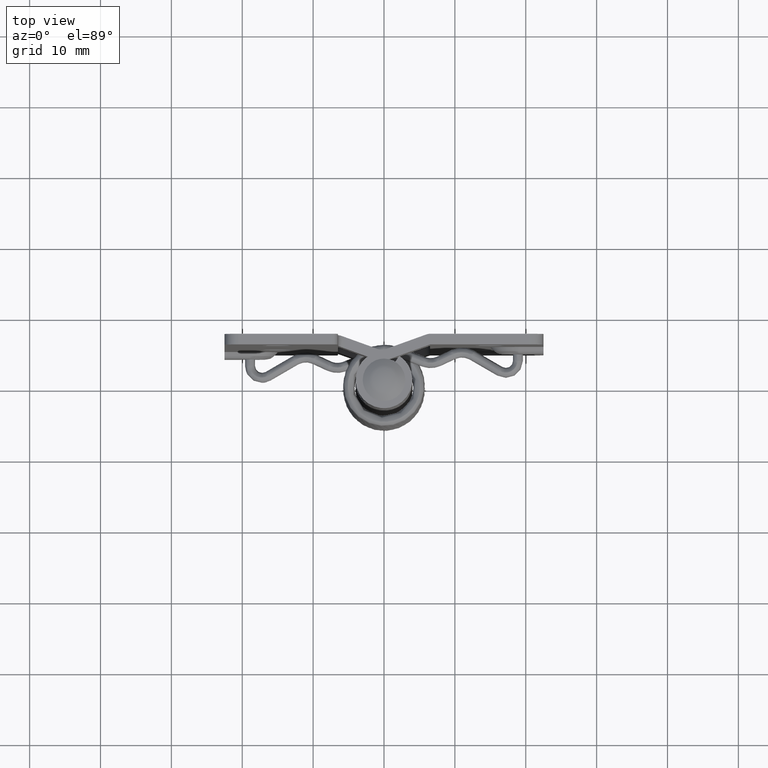
[diagram: clean part render]
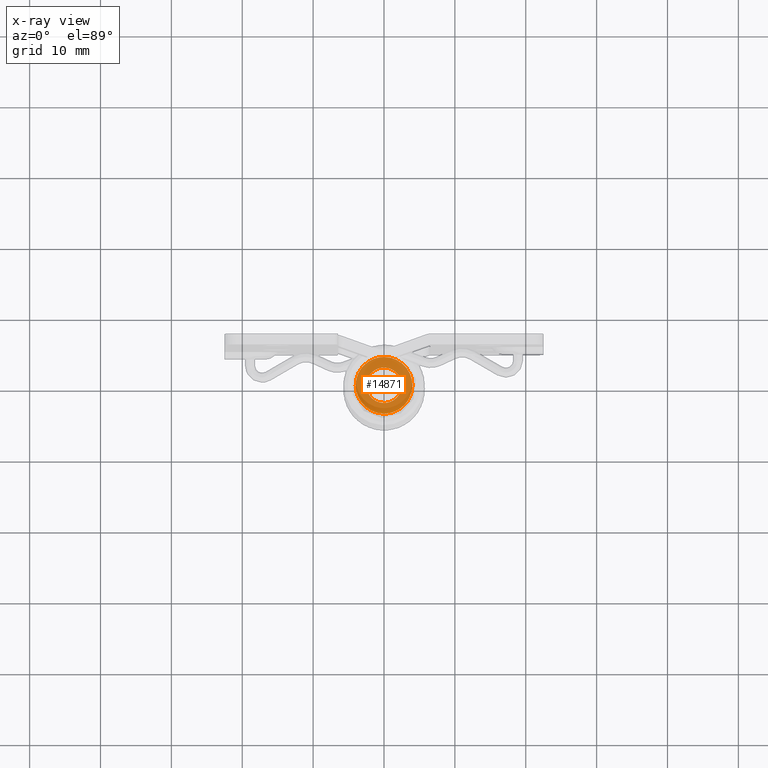
[diagram: x-ray — body ghosted, one internal face saturated and labeled with its STEP entity id]
A machine part, top view, then the same camera in x-ray: the body is ghosted and one INTERNAL B-rep face — a face not visible from any outside direction — is saturated and labeled: STEP entity #14871.
In plain terms, the highlighted face is a freeform B-spline surface patch.
Its self-contained STEP definition (entity closure, byte-faithful):
#14669=CARTESIAN_POINT('',(-1.813435749442856,1.720886166949015,45.199999999999989));
#14670=VERTEX_POINT('',#14669);
#14676=CARTESIAN_POINT('',(0.000001268180924,2.500000000001198,45.199999999999989));
#14677=VERTEX_POINT('',#14676);
#14678=CARTESIAN_POINT('',(-1.813435749442856,1.720886166949015,45.199999999999989));
#14679=CARTESIAN_POINT('',(-1.595407217978196,1.951112978798634,45.199999999999932));
#14680=CARTESIAN_POINT('',(-1.192723801229515,2.238766610204819,45.200000000000152));
#14681=CARTESIAN_POINT('',(-0.549482832631326,2.458783605487263,45.199999999999797));
#14682=CARTESIAN_POINT('',(-0.190215395012645,2.500038162665099,45.200000000000152));
#14683=CARTESIAN_POINT('',(0.000001268180924,2.500000000001198,45.199999999999989));
#14684=B_SPLINE_CURVE_WITH_KNOTS('',3,(#14678,#14679,#14680,#14681,#14682,#14683),.UNSPECIFIED.,.F.,.U.,(4,1,1,4),(0.000000017775271,0.951094867949166,1.458344325532452,2.029000833970073),.UNSPECIFIED.);
#14685=EDGE_CURVE('',#14670,#14677,#14684,.T.);
#14687=CARTESIAN_POINT('',(2.500000000001520,0.0,45.200000000000003));
#14688=VERTEX_POINT('',#14687);
#14689=CARTESIAN_POINT('',(0.000001268180924,2.500000000001198,45.199999999999989));
#14690=CARTESIAN_POINT('',(0.204529768744534,2.500046525684481,45.199999999999982));
#14691=CARTESIAN_POINT('',(0.572666916571242,2.454567070398110,45.200000000000003));
#14692=CARTESIAN_POINT('',(1.075759560628261,2.274521814844351,45.199999999999967));
#14693=CARTESIAN_POINT('',(1.604752188839681,1.957691969373016,45.200000000000010));
#14694=CARTESIAN_POINT('',(2.019748766606501,1.521778070663798,45.200000000000003));
#14695=CARTESIAN_POINT('',(2.316599463340473,0.982120140686100,45.200000000000017));
#14696=CARTESIAN_POINT('',(2.465758156340604,0.511320549638179,45.199999999999939));
#14697=CARTESIAN_POINT('',(2.500018624126539,0.163616812386670,45.200000000000017));
#14698=CARTESIAN_POINT('',(2.500000000001520,0.0,45.200000000000003));
#14699=B_SPLINE_CURVE_WITH_KNOTS('',3,(#14689,#14690,#14691,#14692,#14693,#14694,#14695,#14696,#14697,#14698),.UNSPECIFIED.,.F.,.U.,(4,1,1,1,1,1,1,4),(0.000000068882241,0.613594138429000,1.104497359872838,1.595401061775675,2.454409240824886,2.883955181689888,3.436223762689304,3.927088646054417),.UNSPECIFIED.);
#14700=EDGE_CURVE('',#14677,#14688,#14699,.T.);
#14702=CARTESIAN_POINT('',(1.813435749442853,-1.720886166949012,45.200000000000003));
#14703=VERTEX_POINT('',#14702);
#14704=CARTESIAN_POINT('',(2.500000000001520,0.0,45.200000000000003));
#14705=CARTESIAN_POINT('',(2.500371575508639,-0.336169898249327,45.199999999999953));
#14706=CARTESIAN_POINT('',(2.370328241386440,-0.968488102781105,45.200000000000017));
#14707=CARTESIAN_POINT('',(2.017768227099692,-1.505902096922608,45.200000000000010));
#14708=CARTESIAN_POINT('',(1.813435749442853,-1.720886166949012,45.200000000000003));
#14709=B_SPLINE_CURVE_WITH_KNOTS('',3,(#14704,#14705,#14706,#14707,#14708),.UNSPECIFIED.,.F.,.U.,(4,1,4),(0.000000023073598,1.008356475778804,1.898089873847878),.UNSPECIFIED.);
#14710=EDGE_CURVE('',#14688,#14703,#14709,.T.);
#14744=CARTESIAN_POINT('',(-0.000001268180943,-2.500000000001199,45.200000000000003));
#14745=VERTEX_POINT('',#14744);
#14746=CARTESIAN_POINT('',(1.813435749442853,-1.720886166949012,45.200000000000003));
#14747=CARTESIAN_POINT('',(1.595389051193361,-1.951086911184951,45.199999999999967));
#14748=CARTESIAN_POINT('',(1.192739769711859,-2.238790609608837,45.200000000000117));
#14749=CARTESIAN_POINT('',(0.549480847193396,-2.458780397101433,45.199999999999868));
#14750=CARTESIAN_POINT('',(0.190214481396060,-2.500036907234344,45.200000000000102));
#14751=CARTESIAN_POINT('',(-0.000001268180943,-2.500000000001199,45.200000000000003));
#14752=B_SPLINE_CURVE_WITH_KNOTS('',3,(#14746,#14747,#14748,#14749,#14750,#14751),.UNSPECIFIED.,.F.,.U.,(4,1,1,4),(0.000000017775253,0.951094867949168,1.458344325532461,2.029000833970091),.UNSPECIFIED.);
#14753=EDGE_CURVE('',#14703,#14745,#14752,.T.);
#14755=CARTESIAN_POINT('',(-2.500000000001520,0.0,45.200000000000003));
#14756=VERTEX_POINT('',#14755);
#14757=CARTESIAN_POINT('',(-0.000001268180943,-2.500000000001199,45.200000000000003));
#14758=CARTESIAN_POINT('',(-0.245446103735422,-2.500107291163160,45.200000000000003));
#14759=CARTESIAN_POINT('',(-0.736274981698510,-2.427128356026719,45.199999999999982));
#14760=CARTESIAN_POINT('',(-1.334389207166978,-2.144328013345353,45.200000000000003));
#14761=CARTESIAN_POINT('',(-1.779137568999932,-1.779138611407729,45.199999999999989));
#14762=CARTESIAN_POINT('',(-2.157385794391836,-1.318506862080833,45.199999999999953));
#14763=CARTESIAN_POINT('',(-2.433369846489145,-0.715870462547818,45.200000000000017));
#14764=CARTESIAN_POINT('',(-2.500054587080105,-0.224977491518940,45.199999999999960));
#14765=CARTESIAN_POINT('',(-2.500000000001520,0.0,45.200000000000003));
#14766=B_SPLINE_CURVE_WITH_KNOTS('',3,(#14757,#14758,#14759,#14760,#14761,#14762,#14763,#14764,#14765),.UNSPECIFIED.,.F.,.U.,(4,1,1,1,1,1,4),(0.000000068882398,0.736323053896466,1.472678834935018,1.963544356547700,2.454409240824884,3.252132717840226,3.927088646054407),.UNSPECIFIED.);
#14767=EDGE_CURVE('',#14745,#14756,#14766,.T.);
#14769=CARTESIAN_POINT('',(-2.500000000001520,0.0,45.200000000000003));
#14770=CARTESIAN_POINT('',(-2.500066288917525,0.217492006152704,45.199999999999953));
#14771=CARTESIAN_POINT('',(-2.450652162750696,0.593107101246805,45.199999999999982));
#14772=CARTESIAN_POINT('',(-2.229247298185733,1.188843837944513,45.199999999999967));
#14773=CARTESIAN_POINT('',(-1.990461023483875,1.534514505008721,45.200000000000038));
#14774=CARTESIAN_POINT('',(-1.813435749442856,1.720886166949015,45.199999999999989));
#14775=B_SPLINE_CURVE_WITH_KNOTS('',3,(#14769,#14770,#14771,#14772,#14773,#14774),.UNSPECIFIED.,.F.,.U.,(4,1,1,4),(0.000000023073629,0.652474779190977,1.126983549200265,1.898089873847881),.UNSPECIFIED.);
#14776=EDGE_CURVE('',#14756,#14670,#14775,.T.);
#14782=CARTESIAN_POINT('',(-4.399599984494227,-4.399599984494088,45.200000000000003));
#14783=CARTESIAN_POINT('',(4.399600199070948,-4.399599984494088,45.200000000000003));
#14784=CARTESIAN_POINT('',(-4.399599984494227,4.399600199070809,45.200000000000003));
#14785=CARTESIAN_POINT('',(4.399600199070948,4.399600199070809,45.200000000000003));
#14786=B_SPLINE_SURFACE_WITH_KNOTS('',1,1,((#14782,#14784),(#14783,#14785)),.UNSPECIFIED.,.F.,.F.,.U.,(2,2),(2,2),(0.0,8.799200183565175),(0.0,8.799200183564897),.UNSPECIFIED.);
#14787=CARTESIAN_POINT('',(-3.999999999999800,0.0,45.200000000000003));
#14788=VERTEX_POINT('',#14787);
#14789=CARTESIAN_POINT('',(-2.901497350123922,2.753418079570829,45.200000000000301));
#14790=VERTEX_POINT('',#14789);
#14791=CARTESIAN_POINT('',(-3.999999999999800,0.0,45.200000000000003));
#14792=CARTESIAN_POINT('',(-4.000167581900993,0.395439016817958,45.200000000000031));
#14793=CARTESIAN_POINT('',(-3.893590390713273,1.107124281393173,45.200000000000337));
#14794=CARTESIAN_POINT('',(-3.482326779727679,2.039910302138187,45.199999999999797));
#14795=CARTESIAN_POINT('',(-3.108405067572714,2.535460000412070,45.200000000000529));
#14796=CARTESIAN_POINT('',(-2.901497350123922,2.753418079570829,45.200000000000301));
#14797=B_SPLINE_CURVE_WITH_KNOTS('',3,(#14791,#14792,#14793,#14794,#14795,#14796),.UNSPECIFIED.,.F.,.U.,(4,1,1,4),(0.000000030346096,1.186287903894152,2.135310455761182,3.036890539516110),.UNSPECIFIED.);
#14798=EDGE_CURVE('',#14788,#14790,#14797,.T.);
#14799=ORIENTED_EDGE('',*,*,#14798,.T.);
#14800=CARTESIAN_POINT('',(0.000001004534033,3.999999999999673,45.199999999999989));
#14801=VERTEX_POINT('',#14800);
#14802=CARTESIAN_POINT('',(-2.901497350123922,2.753418079570829,45.200000000000301));
#14803=CARTESIAN_POINT('',(-2.680419904795393,2.986512006693329,45.200000000000273));
#14804=CARTESIAN_POINT('',(-2.286642402062435,3.312050495655456,45.200000000000259));
#14805=CARTESIAN_POINT('',(-1.587900639596916,3.694616293052010,45.200000000000117));
#14806=CARTESIAN_POINT('',(-0.862287684561458,3.937784562514000,45.200000000000280));
#14807=CARTESIAN_POINT('',(-0.287435694335912,4.000045874316367,45.199999999999513));
#14808=CARTESIAN_POINT('',(0.000001004534033,3.999999999999673,45.199999999999989));
#14809=B_SPLINE_CURVE_WITH_KNOTS('',3,(#14802,#14803,#14804,#14805,#14806,#14807,#14808),.UNSPECIFIED.,.F.,.U.,(4,1,1,1,4),(0.000000033080514,0.963757957769023,1.521733375296327,2.384026297948613,3.246335130920777),.UNSPECIFIED.);
#14810=EDGE_CURVE('',#14790,#14801,#14809,.T.);
#14811=ORIENTED_EDGE('',*,*,#14810,.T.);
#14812=CARTESIAN_POINT('',(3.999999999999800,0.0,45.200000000000003));
#14813=VERTEX_POINT('',#14812);
#14814=CARTESIAN_POINT('',(0.000001004534033,3.999999999999673,45.199999999999989));
#14815=CARTESIAN_POINT('',(0.458200518488036,4.000343249120027,45.200000000000117));
#14816=CARTESIAN_POINT('',(1.177896675614950,3.874870018773474,45.199999999999783));
#14817=CARTESIAN_POINT('',(2.188636042219029,3.396881906909364,45.200000000000273));
#14818=CARTESIAN_POINT('',(2.955793803478751,2.767345223757178,45.199999999999747));
#14819=CARTESIAN_POINT('',(3.525287286402189,1.958529593273447,45.200000000000422));
#14820=CARTESIAN_POINT('',(3.902789565636384,1.047096862717053,45.199999999999427));
#14821=CARTESIAN_POINT('',(4.000171307152111,0.392719962667782,45.200000000000912));
#14822=CARTESIAN_POINT('',(3.999999999999800,0.0,45.200000000000003));
#14823=B_SPLINE_CURVE_WITH_KNOTS('',3,(#14814,#14815,#14816,#14817,#14818,#14819,#14820,#14821,#14822),.UNSPECIFIED.,.F.,.U.,(4,1,1,1,1,1,4),(0.000000123777639,1.374450594891274,2.159862057433166,3.337927802063671,4.319707607886489,5.105128705931229,6.283224165334360),.UNSPECIFIED.);
#14824=EDGE_CURVE('',#14801,#14813,#14823,.T.);
#14825=ORIENTED_EDGE('',*,*,#14824,.T.);
#14826=CARTESIAN_POINT('',(2.901497350123921,-2.753418079570828,45.200000000000308));
#14827=VERTEX_POINT('',#14826);
#14828=CARTESIAN_POINT('',(3.999999999999800,0.0,45.200000000000003));
#14829=CARTESIAN_POINT('',(4.000137837150946,-0.363809119217695,45.200000000000003));
#14830=CARTESIAN_POINT('',(3.917396698913743,-0.964770848780508,45.200000000000152));
#14831=CARTESIAN_POINT('',(3.557671660318587,-1.915302859916146,45.200000000000180));
#14832=CARTESIAN_POINT('',(3.184763346516706,-2.455238232517731,45.200000000000287));
#14833=CARTESIAN_POINT('',(2.901497350123921,-2.753418079570828,45.200000000000308));
#14834=B_SPLINE_CURVE_WITH_KNOTS('',3,(#14828,#14829,#14830,#14831,#14832,#14833),.UNSPECIFIED.,.F.,.U.,(4,1,1,4),(0.000000030346002,1.091384884878776,1.803141410195543,3.036890539516111),.UNSPECIFIED.);
#14835=EDGE_CURVE('',#14813,#14827,#14834,.T.);
#14836=ORIENTED_EDGE('',*,*,#14835,.T.);
#14837=CARTESIAN_POINT('',(-0.000001004534036,-3.999999999999674,45.200000000000003));
#14838=VERTEX_POINT('',#14837);
#14839=CARTESIAN_POINT('',(2.901497350123921,-2.753418079570828,45.200000000000308));
#14840=CARTESIAN_POINT('',(2.610676855524240,-3.060201324146834,45.200000000000280));
#14841=CARTESIAN_POINT('',(1.998553658458107,-3.528060092842983,45.200000000000308));
#14842=CARTESIAN_POINT('',(0.980637353105994,-3.920176236020259,45.200000000000017));
#14843=CARTESIAN_POINT('',(0.321251277589946,-4.000056443985709,45.200000000000109));
#14844=CARTESIAN_POINT('',(-0.000001004534036,-3.999999999999674,45.200000000000003));
#14845=B_SPLINE_CURVE_WITH_KNOTS('',3,(#14839,#14840,#14841,#14842,#14843,#14844),.UNSPECIFIED.,.F.,.U.,(4,1,1,4),(0.000000033080302,1.268110967694960,2.282577827563852,3.246335130920784),.UNSPECIFIED.);
#14846=EDGE_CURVE('',#14827,#14838,#14845,.T.);
#14847=ORIENTED_EDGE('',*,*,#14846,.T.);
#14848=CARTESIAN_POINT('',(-0.000001004534036,-3.999999999999674,45.200000000000003));
#14849=CARTESIAN_POINT('',(-0.278157717419583,-4.000015100554245,45.200000000000088));
#14850=CARTESIAN_POINT('',(-0.916311499008850,-3.933267755287664,45.200000000000003));
#14851=CARTESIAN_POINT('',(-1.833578482609809,-3.605088156406226,45.199999999999953));
#14852=CARTESIAN_POINT('',(-2.608425308494277,-3.073410949358522,45.200000000000088));
#14853=CARTESIAN_POINT('',(-3.114940401247292,-2.534698948640816,45.199999999999839));
#14854=CARTESIAN_POINT('',(-3.485911373666274,-1.993997371289083,45.200000000000408));
#14855=CARTESIAN_POINT('',(-3.870312889190923,-1.194236358146778,45.199999999999747));
#14856=CARTESIAN_POINT('',(-4.000402699641679,-0.474576489224373,45.199999999999790));
#14857=CARTESIAN_POINT('',(-3.999999999999800,0.0,45.200000000000003));
#14858=B_SPLINE_CURVE_WITH_KNOTS('',3,(#14848,#14849,#14850,#14851,#14852,#14853,#14854,#14855,#14856,#14857),.UNSPECIFIED.,.F.,.U.,(4,1,1,1,1,1,1,4),(0.000000123774996,0.834487288950821,1.914421160733415,2.896180860268179,3.632485832480847,4.123362748180011,4.859683952675525,6.283224165334373),.UNSPECIFIED.);
#14859=EDGE_CURVE('',#14838,#14788,#14858,.T.);
#14860=ORIENTED_EDGE('',*,*,#14859,.T.);
#14861=EDGE_LOOP('',(#14799,#14811,#14825,#14836,#14847,#14860));
#14862=FACE_OUTER_BOUND('',#14861,.T.);
#14863=ORIENTED_EDGE('',*,*,#14700,.F.);
#14864=ORIENTED_EDGE('',*,*,#14685,.F.);
#14865=ORIENTED_EDGE('',*,*,#14776,.F.);
#14866=ORIENTED_EDGE('',*,*,#14767,.F.);
#14867=ORIENTED_EDGE('',*,*,#14753,.F.);
#14868=ORIENTED_EDGE('',*,*,#14710,.F.);
#14869=EDGE_LOOP('',(#14863,#14864,#14865,#14866,#14867,#14868));
#14870=FACE_BOUND('',#14869,.T.);
#14871=ADVANCED_FACE('',(#14862,#14870),#14786,.F.);